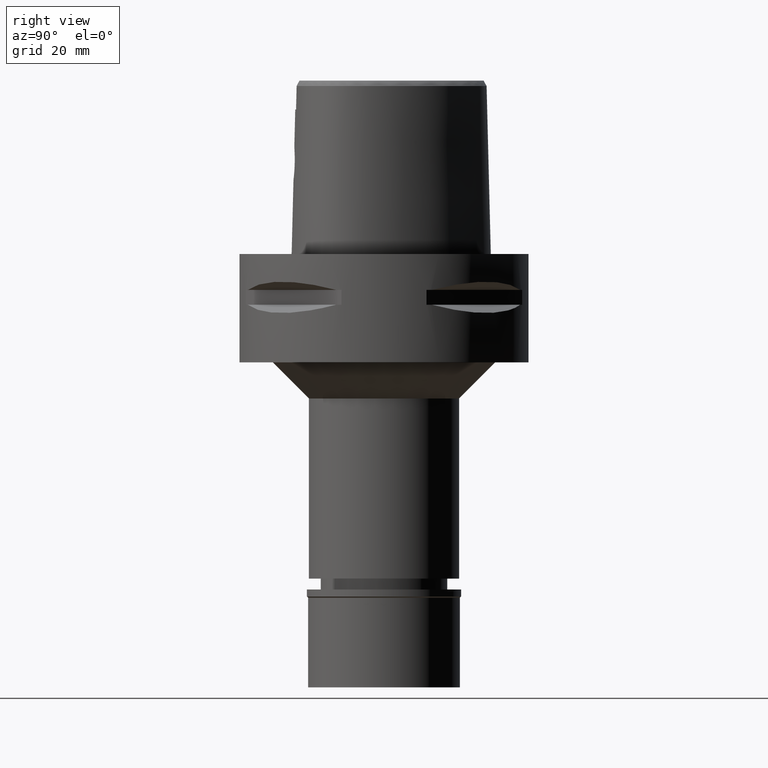
[diagram: clean part render]
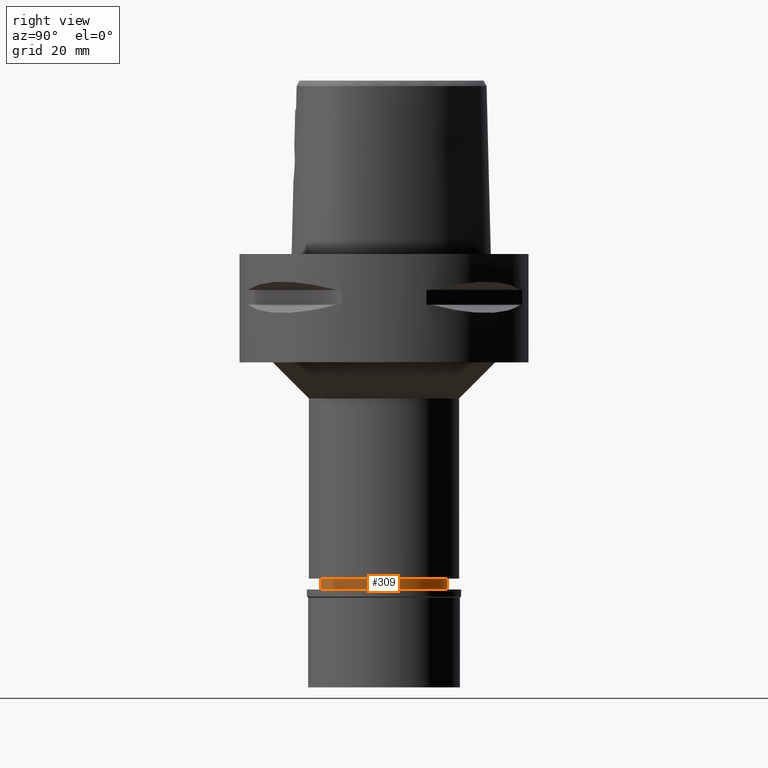
[diagram: same view with one face highlighted and labeled with its STEP entity id]
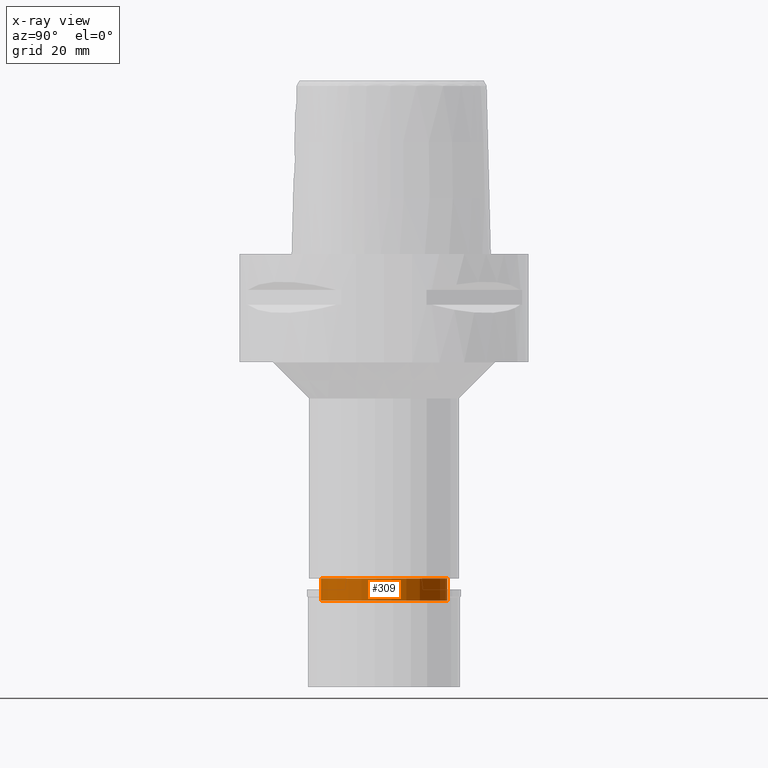
[diagram: x-ray of the same camera — body ghosted, the highlighted face saturated]
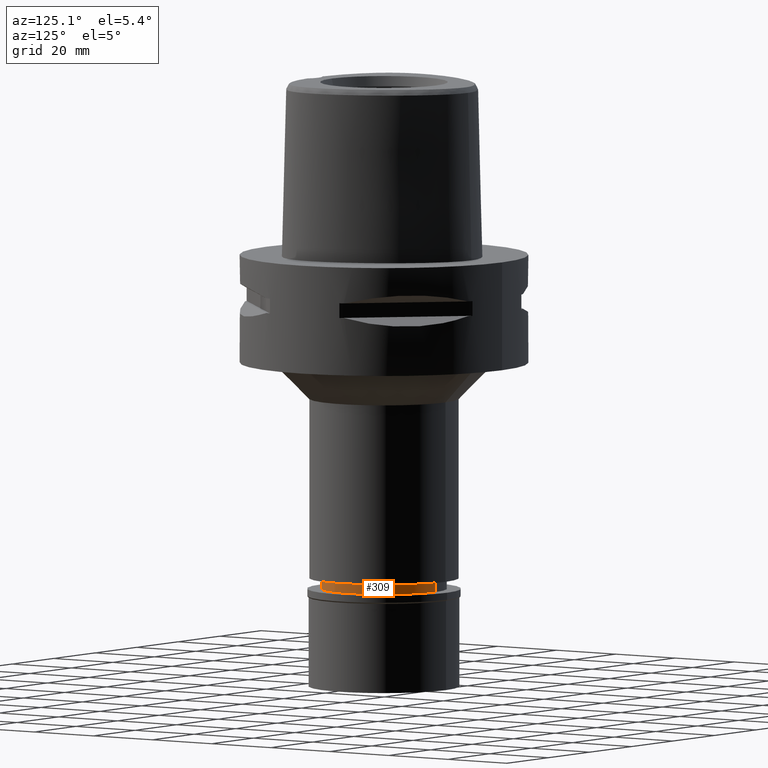
[diagram: same view with one face highlighted and labeled with its STEP entity id]
A machine part, right view. The second image highlights one B-rep face of the part: STEP entity #309.
The next image is the same camera in x-ray: the body ghosted, the highlighted face saturated — about 0% of this face is hidden behind the body in this view.
A second angle (auxiliary view) of the same face is appended — the face is thin or edge-on in the first view.
In plain terms, the highlighted cylindrical surface (partial cylindrical patch) has radius 17.5 mm, axis along (0, 0, -1).
Its self-contained STEP definition (entity closure, byte-faithful):
#229 = FACE_OUTER_BOUND ( 'NONE', #1977, .T. ) ;
#309 = ADVANCED_FACE ( 'NONE', ( #229 ), #960, .T. ) ;
#339 = CARTESIAN_POINT ( 'NONE',  ( 0.0000000000000000000, -17.50000000000000000, -89.89999999999999147 ) ) ;
#412 = ORIENTED_EDGE ( 'NONE', *, *, #2408, .T. ) ;
#601 = CARTESIAN_POINT ( 'NONE',  ( 0.0000000000000000000, -17.50000000000000000, -96.00000000000000000 ) ) ;
#960 = CYLINDRICAL_SURFACE ( 'NONE', #2457, 17.50000000000000000 ) ;
#994 = CARTESIAN_POINT ( 'NONE',  ( 0.0000000000000000000, 1.291390049700999962E-14, -96.00000000000000000 ) ) ;
#1315 = LINE ( 'NONE', #4417, #1584 ) ;
#1400 = DIRECTION ( 'NONE',  ( 0.0000000000000000000, 0.0000000000000000000, 1.000000000000000000 ) ) ;
#1495 = DIRECTION ( 'NONE',  ( 0.0000000000000000000, 0.0000000000000000000, -1.000000000000000000 ) ) ;
#1584 = VECTOR ( 'NONE', #3353, 1000.000000000000000 ) ;
#1634 = DIRECTION ( 'NONE',  ( 0.0000000000000000000, 0.0000000000000000000, -1.000000000000000000 ) ) ;
#1845 = VERTEX_POINT ( 'NONE', #4970 ) ;
#1974 = DIRECTION ( 'NONE',  ( 0.0000000000000000000, 1.000000000000000000, 0.0000000000000000000 ) ) ;
#1977 = EDGE_LOOP ( 'NONE', ( #3393, #412, #2716, #3574 ) ) ;
#1992 = AXIS2_PLACEMENT_3D ( 'NONE', #994, #1400, #2524 ) ;
#2145 = VERTEX_POINT ( 'NONE', #3486 ) ;
#2259 = AXIS2_PLACEMENT_3D ( 'NONE', #3961, #1634, #1974 ) ;
#2408 = EDGE_CURVE ( 'NONE', #3180, #3856, #4882, .T. ) ;
#2457 = AXIS2_PLACEMENT_3D ( 'NONE', #4532, #3350, #4883 ) ;
#2524 = DIRECTION ( 'NONE',  ( 0.0000000000000000000, -1.000000000000000000, 0.0000000000000000000 ) ) ;
#2716 = ORIENTED_EDGE ( 'NONE', *, *, #3857, .T. ) ;
#3180 = VERTEX_POINT ( 'NONE', #5007 ) ;
#3350 = DIRECTION ( 'NONE',  ( 0.0000000000000000000, 0.0000000000000000000, -1.000000000000000000 ) ) ;
#3353 = DIRECTION ( 'NONE',  ( 0.0000000000000000000, 0.0000000000000000000, -1.000000000000000000 ) ) ;
#3393 = ORIENTED_EDGE ( 'NONE', *, *, #4722, .T. ) ;
#3486 = CARTESIAN_POINT ( 'NONE',  ( 0.0000000000000000000, 17.50000000000000000, -96.00000000000000000 ) ) ;
#3574 = ORIENTED_EDGE ( 'NONE', *, *, #4325, .F. ) ;
#3768 = VECTOR ( 'NONE', #1495, 1000.000000000000000 ) ;
#3856 = VERTEX_POINT ( 'NONE', #601 ) ;
#3857 = EDGE_CURVE ( 'NONE', #3856, #2145, #4739, .T. ) ;
#3961 = CARTESIAN_POINT ( 'NONE',  ( 0.0000000000000000000, 1.291390049700999962E-14, -89.89999999999999147 ) ) ;
#4325 = EDGE_CURVE ( 'NONE', #1845, #2145, #1315, .T. ) ;
#4417 = CARTESIAN_POINT ( 'NONE',  ( 0.0000000000000000000, 17.50000000000000000, -89.89999999999999147 ) ) ;
#4434 = CIRCLE ( 'NONE', #2259, 17.50000000000000000 ) ;
#4532 = CARTESIAN_POINT ( 'NONE',  ( 0.0000000000000000000, 1.291390049700999962E-14, 5.450000000000000178 ) ) ;
#4722 = EDGE_CURVE ( 'NONE', #1845, #3180, #4434, .T. ) ;
#4739 = CIRCLE ( 'NONE', #1992, 17.50000000000000000 ) ;
#4882 = LINE ( 'NONE', #339, #3768 ) ;
#4883 = DIRECTION ( 'NONE',  ( 0.0000000000000000000, -1.000000000000000000, 0.0000000000000000000 ) ) ;
#4970 = CARTESIAN_POINT ( 'NONE',  ( 0.0000000000000000000, 17.50000000000000000, -89.89999999999999147 ) ) ;
#5007 = CARTESIAN_POINT ( 'NONE',  ( 0.0000000000000000000, -17.50000000000000000, -89.89999999999999147 ) ) ;